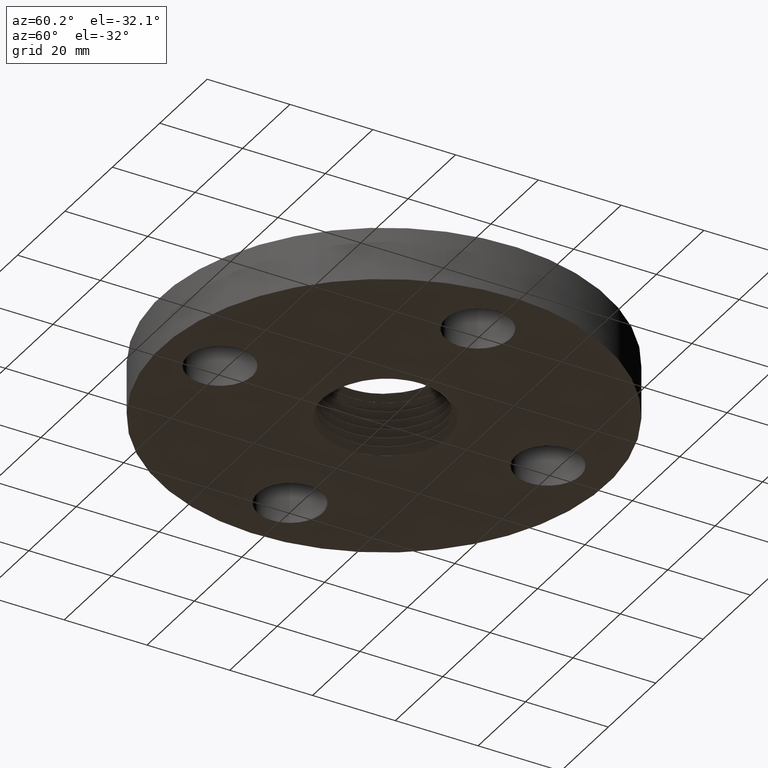
[diagram: clean part render]
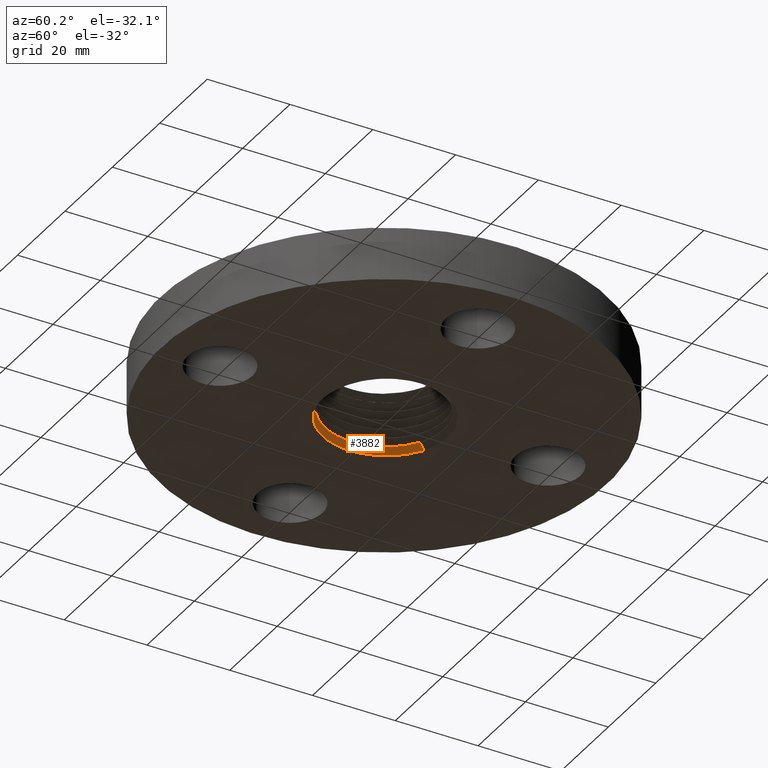
[diagram: same view with one face highlighted and labeled with its STEP entity id]
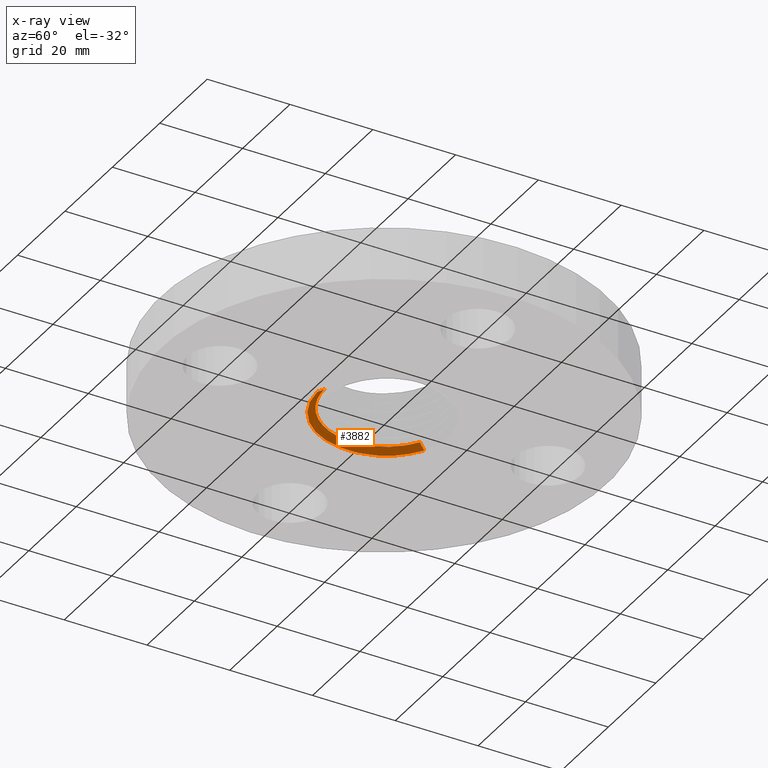
[diagram: x-ray of the same camera — body ghosted, the highlighted face saturated]
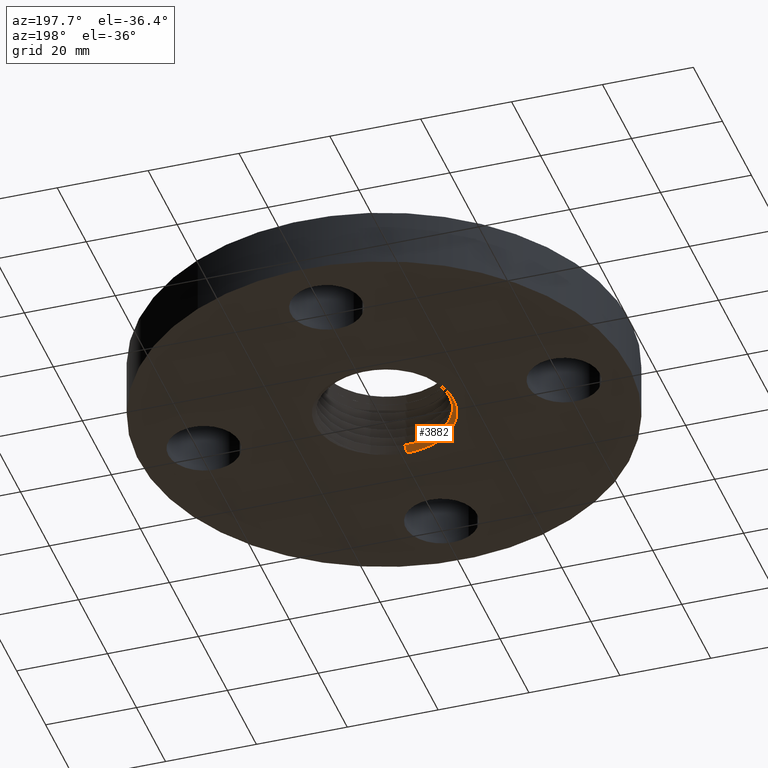
[diagram: same view with one face highlighted and labeled with its STEP entity id]
A machine part, auxiliary view. The second image highlights one B-rep face of the part: STEP entity #3882.
The next image is the same camera in x-ray: the body ghosted, the highlighted face saturated — about 0% of this face is hidden behind the body in this view.
A second angle (auxiliary view) of the same face is appended — the face is thin or edge-on in the first view.
In plain terms, the highlighted face is a freeform B-spline surface patch.
Its self-contained STEP definition (entity closure, byte-faithful):
#105=CARTESIAN_POINT('Vertex',(-0.303142075985,0.554900272472,0.)) ;
#109=CARTESIAN_POINT('Control Point',(-0.309805269795,0.551494367179,0.)) ;
#110=CARTESIAN_POINT('Control Point',(-0.30847656217,0.552183488654,0.)) ;
#111=CARTESIAN_POINT('Control Point',(-0.307145875209,0.552868646817,0.)) ;
#112=CARTESIAN_POINT('Control Point',(-0.305813204151,0.553549844168,0.)) ;
#113=CARTESIAN_POINT('Control Point',(-0.304478605952,0.55422705181,0.)) ;
#114=CARTESIAN_POINT('Control Point',(-0.303142075985,0.554900272472,0.)) ;
#115=CARTESIAN_POINT('Vertex',(-0.309805269795,0.551494367179,-6.55643518479E-018)) ;
#3567=CARTESIAN_POINT('Vertex',(-3.34259329547E-005,-0.566759164743,0.0812129963581)) ;
#3571=CARTESIAN_POINT('Control Point',(-0.271170839692,0.496374892543,0.044637099459)) ;
#3572=CARTESIAN_POINT('Control Point',(-0.297348890912,0.482099750259,0.0453670355998)) ;
#3573=CARTESIAN_POINT('Control Point',(-0.322586980988,0.466099204124,0.0460969554378)) ;
#3574=CARTESIAN_POINT('Control Point',(-0.346849384994,0.448386401258,0.0468302249095)) ;
#3575=CARTESIAN_POINT('Control Point',(-0.392964825105,0.409739188898,0.048299978913)) ;
#3576=CARTESIAN_POINT('Control Point',(-0.433567016772,0.365346320968,0.0497692989568)) ;
#3577=CARTESIAN_POINT('Control Point',(-0.452308978599,0.341880374436,0.0505021344688)) ;
#3578=CARTESIAN_POINT('Control Point',(-0.503633319111,0.268198416061,0.0526944896686)) ;
#3579=CARTESIAN_POINT('Control Point',(-0.539768593175,0.185361129895,0.0548864456855)) ;
#3580=CARTESIAN_POINT('Control Point',(-0.5564043738,0.127190245579,0.0563497957455)) ;
#3581=CARTESIAN_POINT('Control Point',(-0.573925586344,0.00779542492209,0.0592765728435)) ;
#3582=CARTESIAN_POINT('Control Point',(-0.559831352818,-0.112110688094,0.06220339074)) ;
#3583=CARTESIAN_POINT('Control Point',(-0.544845545232,-0.170809408818,0.0636675150208)) ;
#3584=CARTESIAN_POINT('Control Point',(-0.499738118552,-0.282796499321,0.0665951908729)) ;
#3585=CARTESIAN_POINT('Control Point',(-0.42712228153,-0.379205869024,0.0695205706746)) ;
#3586=CARTESIAN_POINT('Control Point',(-0.384636990362,-0.422298111287,0.070982009186)) ;
#3587=CARTESIAN_POINT('Control Point',(-0.313288094175,-0.477647975408,0.0731702681751)) ;
#3588=CARTESIAN_POINT('Control Point',(-0.233003328261,-0.517732469071,0.0753589120832)) ;
#3589=CARTESIAN_POINT('Control Point',(-0.205325020439,-0.529371852858,0.0760905815239)) ;
#3590=CARTESIAN_POINT('Control Point',(-0.148360464193,-0.548942422314,0.0775591862905)) ;
#3591=CARTESIAN_POINT('Control Point',(-0.0892965850517,-0.560824345066,0.0790279295544)) ;
#3592=CARTESIAN_POINT('Control Point',(-0.0595146378143,-0.564759292777,0.0797597374926)) ;
#3593=CARTESIAN_POINT('Control Point',(-0.0297752295914,-0.566734703898,0.0804863759401)) ;
#3594=CARTESIAN_POINT('Control Point',(-3.3425932955E-005,-0.566759164743,0.0812129963581)) ;
#3595=CARTESIAN_POINT('Vertex',(-0.271139834516,0.496391798707,0.0446362349403)) ;
#3836=CARTESIAN_POINT('Control Point',(-1.0351793011E-006,-0.633692515691,0.0364130150521)) ;
#3837=CARTESIAN_POINT('Control Point',(-3.40424475558E-005,-0.56548517808,0.0820657039826)) ;
#3838=CARTESIAN_POINT('Control Point',(-0.167350117009,-0.633577972459,0.0327563588197)) ;
#3839=CARTESIAN_POINT('Control Point',(-0.149370739031,-0.565361918103,0.0784090476241)) ;
#3840=CARTESIAN_POINT('Control Point',(-0.334663636001,-0.578220283376,0.0290988125081)) ;
#3841=CARTESIAN_POINT('Control Point',(-0.298664693265,-0.515941460104,0.0747515011865)) ;
#3842=CARTESIAN_POINT('Control Point',(-0.476968977917,-0.467655801991,0.0254527578746)) ;
#3843=CARTESIAN_POINT('Control Point',(-0.425631018379,-0.417263047705,0.0711054461917)) ;
#3844=CARTESIAN_POINT('Control Point',(-0.666920438036,-0.170701865692,0.0181342198466)) ;
#3845=CARTESIAN_POINT('Control Point',(-0.5950831918,-0.152268081408,0.0637869082134)) ;
#3846=CARTESIAN_POINT('Control Point',(-0.642552823364,0.18097319816,0.0108121852333)) ;
#3847=CARTESIAN_POINT('Control Point',(-0.573293741266,0.161509845999,0.0564648729494)) ;
#3848=CARTESIAN_POINT('Control Point',(-0.570618402372,0.346241681523,0.00716268315611)) ;
#3849=CARTESIAN_POINT('Control Point',(-0.5090891542,0.308955760111,0.0528153708936)) ;
#3850=CARTESIAN_POINT('Control Point',(-0.450192205321,0.474975960963,0.00349989487369)) ;
#3851=CARTESIAN_POINT('Control Point',(-0.401628098525,0.423795337788,0.0491525824572)) ;
#3852=CARTESIAN_POINT('Control Point',(-0.303259474015,0.555114906799,-0.000163744969307)) ;
#3853=CARTESIAN_POINT('Control Point',(-0.270528480265,0.49527408312,0.0454889424602)) ;
#3855=CARTESIAN_POINT('Control Point',(-0.303142075985,0.554900272472,6.96621238384E-018)) ;
#3856=CARTESIAN_POINT('Control Point',(-0.271139834516,0.496391798707,0.0446362349403)) ;
#3859=CARTESIAN_POINT('Control Point',(-1.0351793011E-006,-0.633692515691,0.0364130150521)) ;
#3860=CARTESIAN_POINT('Control Point',(-3.34259329547E-005,-0.566759164743,0.0812129963581)) ;
#3861=CARTESIAN_POINT('Vertex',(-1.03517930079E-006,-0.633692515691,0.0364130150521)) ;
#3865=CARTESIAN_POINT('Control Point',(-1.0351793011E-006,-0.633692515691,0.0364130150521)) ;
#3866=CARTESIAN_POINT('Control Point',(-0.167350117009,-0.633577972459,0.0327563588197)) ;
#3867=CARTESIAN_POINT('Control Point',(-0.334663636001,-0.578220283376,0.0290988125081)) ;
#3868=CARTESIAN_POINT('Control Point',(-0.476968977917,-0.467655801991,0.0254527578746)) ;
#3869=CARTESIAN_POINT('Control Point',(-0.666071451146,-0.172029099496,0.0181669300076)) ;
#3870=CARTESIAN_POINT('Control Point',(-0.642766363855,0.177830672193,0.0108776367414)) ;
#3871=CARTESIAN_POINT('Control Point',(-0.572533141417,0.341807177724,0.00726055422134)) ;
#3872=CARTESIAN_POINT('Control Point',(-0.454474866956,0.470355514769,0.00363085471615)) ;
#3873=CARTESIAN_POINT('Control Point',(-0.309805269795,0.551494367179,3.91422595342E-018)) ;
#3876=ORIENTED_EDGE('',*,*,#3857,.F.) ;
#3877=ORIENTED_EDGE('',*,*,#3597,.T.) ;
#3878=ORIENTED_EDGE('',*,*,#3863,.T.) ;
#3879=ORIENTED_EDGE('',*,*,#3874,.T.) ;
#3880=ORIENTED_EDGE('',*,*,#117,.T.) ;
#3882=ADVANCED_FACE('PartBody',(#3881),#3835,.T.) ;
#108=B_SPLINE_CURVE_WITH_KNOTS('',5,(#109,#110,#111,#112,#113,#114),.UNSPECIFIED.,.F.,.U.,(6,6),(0.,0.261820779537),.UNSPECIFIED.) ;
#3570=B_SPLINE_CURVE_WITH_KNOTS('',5,(#3571,#3572,#3573,#3574,#3575,#3576,#3577,#3578,#3579,#3580,#3581,#3582,#3583,#3584,#3585,#3586,#3587,#3588,#3589,#3590,#3591,#3592,#3593,#3594),.UNSPECIFIED.,.F.,.U.,(6,3,3,3,3,3,3,6),(0.,5.70519655219,11.4103931044,22.8551431495,34.3027324715,45.7448153613,51.4294422218,57.1140690824),.UNSPECIFIED.) ;
#3854=B_SPLINE_CURVE_WITH_KNOTS('',1,(#3855,#3856),.UNSPECIFIED.,.F.,.U.,(2,2),(-1.0348831929,1.00342185115),.UNSPECIFIED.) ;
#3858=B_SPLINE_CURVE_WITH_KNOTS('',1,(#3859,#3860),.UNSPECIFIED.,.F.,.U.,(2,2),(-1.04236057529,1.00342184765),.UNSPECIFIED.) ;
#3864=B_SPLINE_CURVE_WITH_KNOTS('',5,(#3865,#3866,#3867,#3868,#3869,#3870,#3871,#3872,#3873),.UNSPECIFIED.,.F.,.U.,(6,3,6),(0.,20.1259871584,40.0721715133),.UNSPECIFIED.) ;
#3835=B_SPLINE_SURFACE_WITH_KNOTS('',5,1,((#3836,#3837),(#3838,#3839),(#3840,#3841),(#3842,#3843),(#3844,#3845),(#3846,#3847),(#3848,#3849),(#3850,#3851),(#3852,#3853)),.UNSPECIFIED.,.F.,.F.,.U.,(6,3,6),(2,2),(0.,20.1259871584,40.2520779296),(-1.04236057529,1.04236057529),.UNSPECIFIED.) ;
#117=EDGE_CURVE('',#116,#106,#108,.T.) ;
#3597=EDGE_CURVE('',#3596,#3568,#3570,.T.) ;
#3857=EDGE_CURVE('',#3596,#106,#3854,.F.) ;
#3863=EDGE_CURVE('',#3568,#3862,#3858,.F.) ;
#3874=EDGE_CURVE('',#3862,#116,#3864,.T.) ;
#3875=EDGE_LOOP('',(#3876,#3877,#3878,#3879,#3880)) ;
#3881=FACE_OUTER_BOUND('',#3875,.T.) ;
#106=VERTEX_POINT('',#105) ;
#116=VERTEX_POINT('',#115) ;
#3568=VERTEX_POINT('',#3567) ;
#3596=VERTEX_POINT('',#3595) ;
#3862=VERTEX_POINT('',#3861) ;